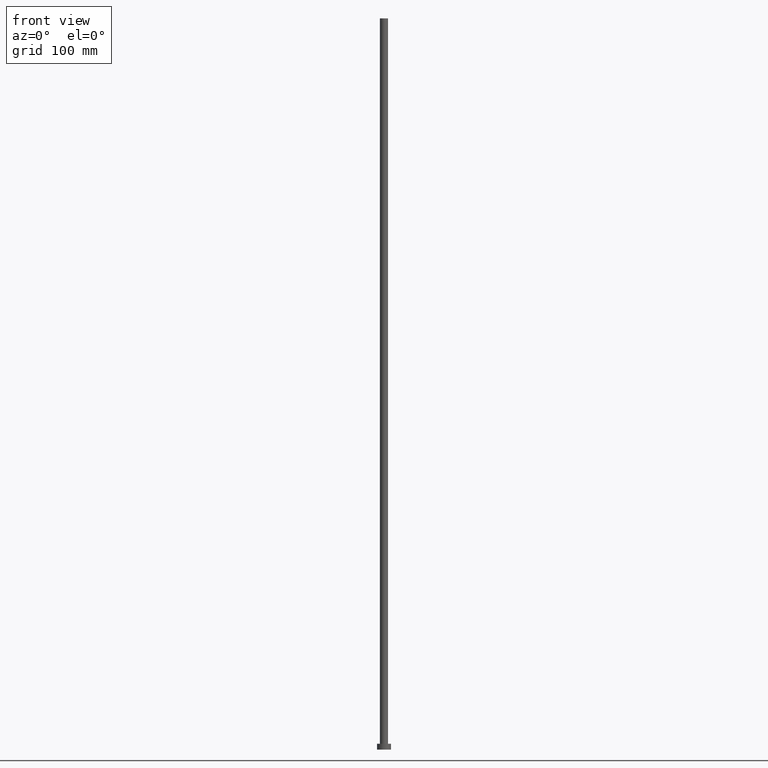
[diagram: clean part render]
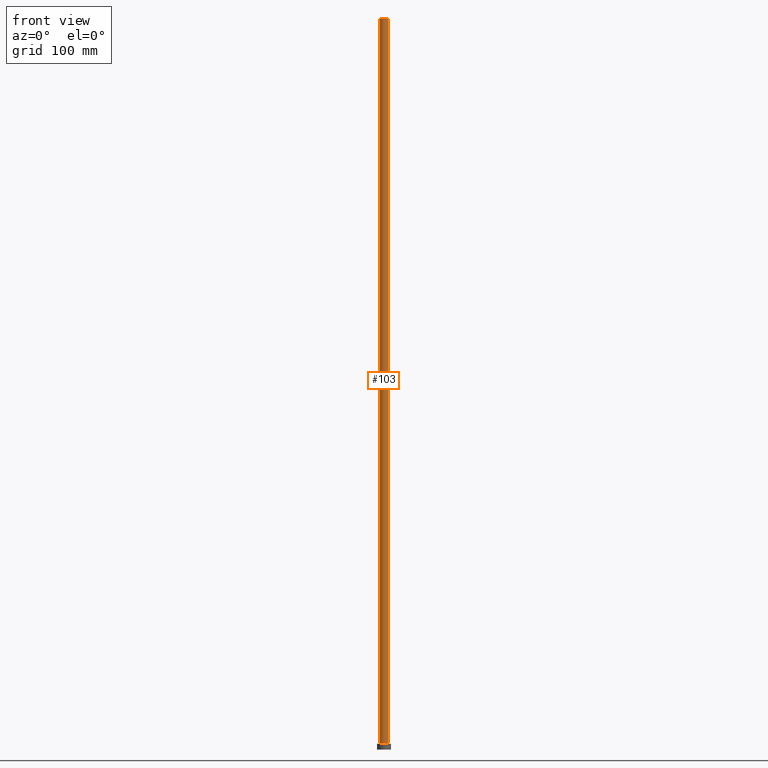
[diagram: same view with one face highlighted and labeled with its STEP entity id]
A machine part, front view. The second image highlights one B-rep face of the part: STEP entity #103.
In plain terms, the highlighted cylindrical surface (edge-blend (fillet) strip) has radius 3.5 mm, axis along (-0, -0, -1).
Its self-contained STEP definition (entity closure, byte-faithful):
#1 = DIRECTION ( 'NONE',  ( -1.000000000000000000, 0.000000000000000000, 0.000000000000000000 ) ) ;
#3 = CARTESIAN_POINT ( 'NONE',  ( -3.500000000000000000, 0.000000000000000000, 5.000000000000000000 ) ) ;
#12 = ORIENTED_EDGE ( 'NONE', *, *, #34, .T. ) ;
#16 = AXIS2_PLACEMENT_3D ( 'NONE', #211, #171, #1 ) ;
#17 = DIRECTION ( 'NONE',  ( 1.000000000000000000, 0.000000000000000000, 0.000000000000000000 ) ) ;
#18 = FACE_OUTER_BOUND ( 'NONE', #129, .T. ) ;
#31 = VERTEX_POINT ( 'NONE', #77 ) ;
#34 = EDGE_CURVE ( 'NONE', #141, #88, #191, .T. ) ;
#60 = DIRECTION ( 'NONE',  ( -0.000000000000000000, -0.000000000000000000, -1.000000000000000000 ) ) ;
#61 = DIRECTION ( 'NONE',  ( 0.000000000000000000, 0.000000000000000000, 1.000000000000000000 ) ) ;
#65 = CARTESIAN_POINT ( 'NONE',  ( 0.000000000000000000, 0.000000000000000000, 630.0000000000000000 ) ) ;
#66 = DIRECTION ( 'NONE',  ( 1.000000000000000000, 0.000000000000000000, 0.000000000000000000 ) ) ;
#77 = CARTESIAN_POINT ( 'NONE',  ( 3.500000000000000000, 4.286263797015736595E-16, 630.0000000000000000 ) ) ;
#82 = EDGE_CURVE ( 'NONE', #166, #141, #230, .T. ) ;
#88 = VERTEX_POINT ( 'NONE', #233 ) ;
#92 = VECTOR ( 'NONE', #60, 1000.000000000000000 ) ;
#103 = ADVANCED_FACE ( 'NONE', ( #18 ), #253, .T. ) ;
#110 = CARTESIAN_POINT ( 'NONE',  ( 0.000000000000000000, 0.000000000000000000, 5.000000000000000000 ) ) ;
#111 = VECTOR ( 'NONE', #254, 1000.000000000000000 ) ;
#116 = CARTESIAN_POINT ( 'NONE',  ( 3.500000000000000000, 4.286263797015736595E-16, 630.0000000000000000 ) ) ;
#125 = AXIS2_PLACEMENT_3D ( 'NONE', #110, #61, #17 ) ;
#126 = EDGE_CURVE ( 'NONE', #166, #31, #155, .T. ) ;
#129 = EDGE_LOOP ( 'NONE', ( #246, #223, #189, #12 ) ) ;
#141 = VERTEX_POINT ( 'NONE', #3 ) ;
#155 = CIRCLE ( 'NONE', #162, 3.500000000000000000 ) ;
#156 = LINE ( 'NONE', #116, #111 ) ;
#162 = AXIS2_PLACEMENT_3D ( 'NONE', #65, #179, #66 ) ;
#166 = VERTEX_POINT ( 'NONE', #237 ) ;
#171 = DIRECTION ( 'NONE',  ( -0.000000000000000000, -0.000000000000000000, -1.000000000000000000 ) ) ;
#173 = EDGE_CURVE ( 'NONE', #31, #88, #156, .T. ) ;
#179 = DIRECTION ( 'NONE',  ( 0.000000000000000000, 0.000000000000000000, 1.000000000000000000 ) ) ;
#189 = ORIENTED_EDGE ( 'NONE', *, *, #82, .T. ) ;
#191 = CIRCLE ( 'NONE', #125, 3.500000000000000000 ) ;
#194 = CARTESIAN_POINT ( 'NONE',  ( -3.500000000000000000, 0.000000000000000000, 630.0000000000000000 ) ) ;
#211 = CARTESIAN_POINT ( 'NONE',  ( 0.000000000000000000, 0.000000000000000000, 630.0000000000000000 ) ) ;
#223 = ORIENTED_EDGE ( 'NONE', *, *, #126, .F. ) ;
#230 = LINE ( 'NONE', #194, #92 ) ;
#233 = CARTESIAN_POINT ( 'NONE',  ( 3.500000000000000000, 4.286263797015736595E-16, 5.000000000000000000 ) ) ;
#237 = CARTESIAN_POINT ( 'NONE',  ( -3.500000000000000000, 0.000000000000000000, 630.0000000000000000 ) ) ;
#246 = ORIENTED_EDGE ( 'NONE', *, *, #173, .F. ) ;
#253 = CYLINDRICAL_SURFACE ( 'NONE', #16, 3.500000000000000000 ) ;
#254 = DIRECTION ( 'NONE',  ( -0.000000000000000000, -0.000000000000000000, -1.000000000000000000 ) ) ;